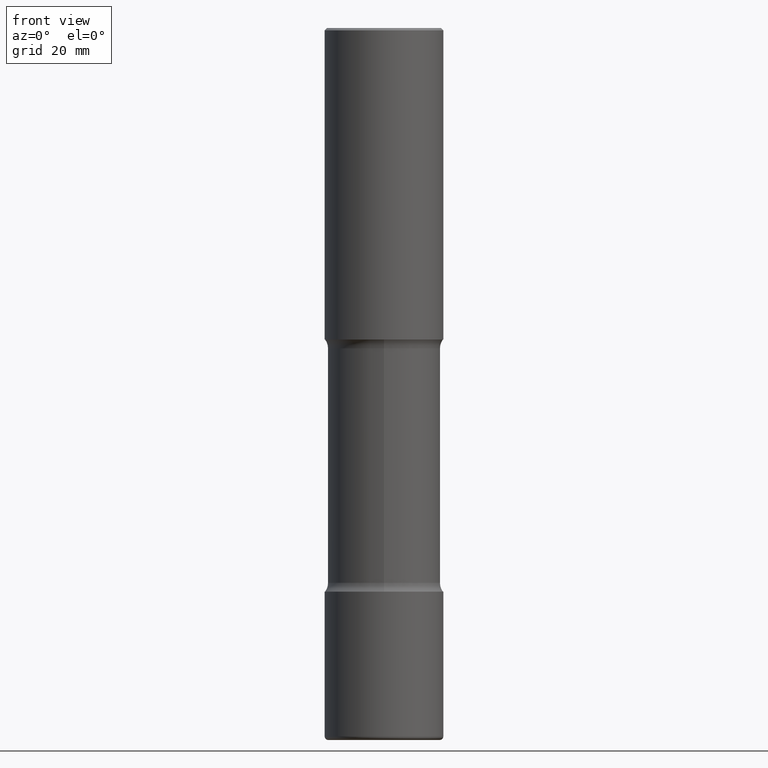
[diagram: clean part render]
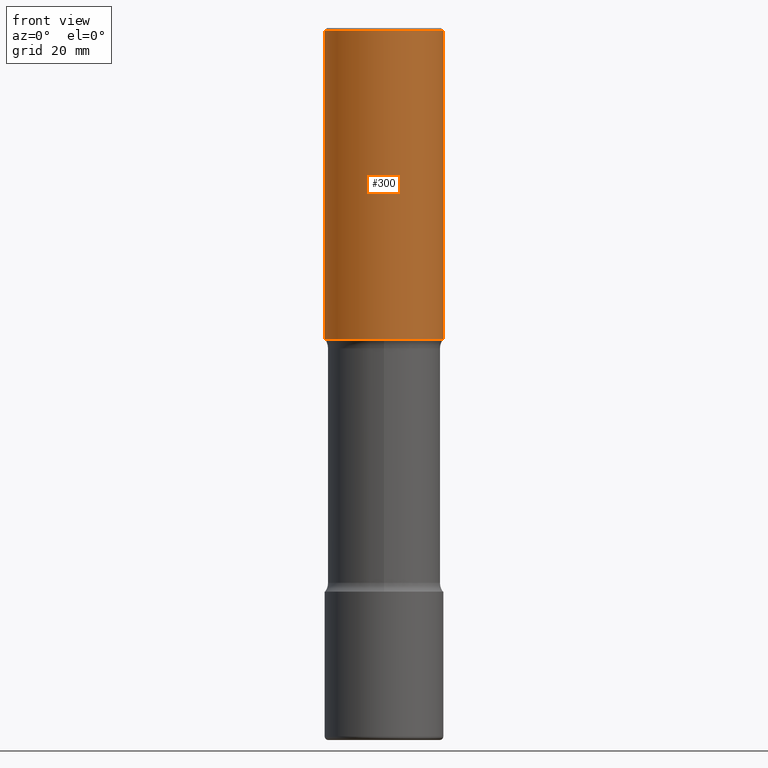
[diagram: same view with one face highlighted and labeled with its STEP entity id]
A machine part, front view. The second image highlights one B-rep face of the part: STEP entity #300.
In plain terms, the highlighted cylindrical surface (partial cylindrical patch) has radius 12.7 mm, axis along (-0, 0, 1).
Its self-contained STEP definition (entity closure, byte-faithful):
#20 = DIRECTION ( 'NONE',  ( -2.445468806185136877E-29, 3.491481338843145188E-15, 1.000000000000000000 ) ) ;
#23 = ORIENTED_EDGE ( 'NONE', *, *, #486, .T. ) ;
#44 = DIRECTION ( 'NONE',  ( -2.445468806185136597E-29, 3.491481338843145583E-15, 1.000000000000000000 ) ) ;
#93 = CARTESIAN_POINT ( 'NONE',  ( 0.000000000000000000, 0.000000000000000000, 0.000000000000000000 ) ) ;
#94 = EDGE_CURVE ( 'NONE', #403, #240, #222, .T. ) ;
#105 = CARTESIAN_POINT ( 'NONE',  ( -0.5000000000000000000, 3.421651712066270057E-15, -0.02000000000000010103 ) ) ;
#119 = CIRCLE ( 'NONE', #146, 0.5000000000000004441 ) ;
#129 = DIRECTION ( 'NONE',  ( 1.000000000000000000, -6.982962677686266711E-15, 0.000000000000000000 ) ) ;
#137 = CARTESIAN_POINT ( 'NONE',  ( 0.5000000000000004441, -1.265661985330638997E-14, -2.624999999999999556 ) ) ;
#146 = AXIS2_PLACEMENT_3D ( 'NONE', #285, #434, #443 ) ;
#158 = VERTEX_POINT ( 'NONE', #137 ) ;
#167 = ORIENTED_EDGE ( 'NONE', *, *, #370, .F. ) ;
#189 = CARTESIAN_POINT ( 'NONE',  ( 0.5000000000000002220, -3.491481338843134933E-15, 2.438088387897969017E-29 ) ) ;
#222 = CIRCLE ( 'NONE', #559, 0.5000000000000000000 ) ;
#240 = VERTEX_POINT ( 'NONE', #513 ) ;
#251 = ORIENTED_EDGE ( 'NONE', *, *, #413, .T. ) ;
#257 = VECTOR ( 'NONE', #274, 39.37007874015748143 ) ;
#265 = CARTESIAN_POINT ( 'NONE',  ( 4.890937612370298557E-31, -6.982962677686327354E-17, -0.02000000000000010103 ) ) ;
#270 = LINE ( 'NONE', #327, #257 ) ;
#274 = DIRECTION ( 'NONE',  ( -2.445468806185136877E-29, 3.491481338843145188E-15, 1.000000000000000000 ) ) ;
#277 = VERTEX_POINT ( 'NONE', #467 ) ;
#285 = CARTESIAN_POINT ( 'NONE',  ( 6.419355616235982445E-29, -9.165138514463255034E-15, -2.624999999999999556 ) ) ;
#286 = EDGE_LOOP ( 'NONE', ( #167, #23, #251, #368 ) ) ;
#300 = ADVANCED_FACE ( 'NONE', ( #464 ), #509, .T. ) ;
#327 = CARTESIAN_POINT ( 'NONE',  ( -0.5000000000000002220, 3.552713678800502507E-15, -2.459467545127454012E-29 ) ) ;
#338 = VECTOR ( 'NONE', #20, 39.37007874015748143 ) ;
#368 = ORIENTED_EDGE ( 'NONE', *, *, #94, .F. ) ;
#370 = EDGE_CURVE ( 'NONE', #277, #403, #270, .T. ) ;
#386 = DIRECTION ( 'NONE',  ( 1.000000000000000000, -6.982962677686266711E-15, 4.876176775795935793E-29 ) ) ;
#403 = VERTEX_POINT ( 'NONE', #105 ) ;
#404 = LINE ( 'NONE', #189, #338 ) ;
#413 = EDGE_CURVE ( 'NONE', #158, #240, #404, .T. ) ;
#423 = DIRECTION ( 'NONE',  ( -2.445468806185136597E-29, 3.491481338843145583E-15, 1.000000000000000000 ) ) ;
#434 = DIRECTION ( 'NONE',  ( -2.445468806185136597E-29, 3.491481338843145583E-15, 1.000000000000000000 ) ) ;
#443 = DIRECTION ( 'NONE',  ( 1.000000000000000000, -6.982962677686264344E-15, 0.000000000000000000 ) ) ;
#464 = FACE_OUTER_BOUND ( 'NONE', #286, .T. ) ;
#467 = CARTESIAN_POINT ( 'NONE',  ( -0.5000000000000004441, -1.064770391819553504E-15, -2.624999999999999556 ) ) ;
#486 = EDGE_CURVE ( 'NONE', #277, #158, #119, .T. ) ;
#509 = CYLINDRICAL_SURFACE ( 'NONE', #540, 0.5000000000000002220 ) ;
#513 = CARTESIAN_POINT ( 'NONE',  ( 0.5000000000000000000, -3.500078625662629079E-15, -0.02000000000000010103 ) ) ;
#540 = AXIS2_PLACEMENT_3D ( 'NONE', #93, #44, #386 ) ;
#559 = AXIS2_PLACEMENT_3D ( 'NONE', #265, #423, #129 ) ;